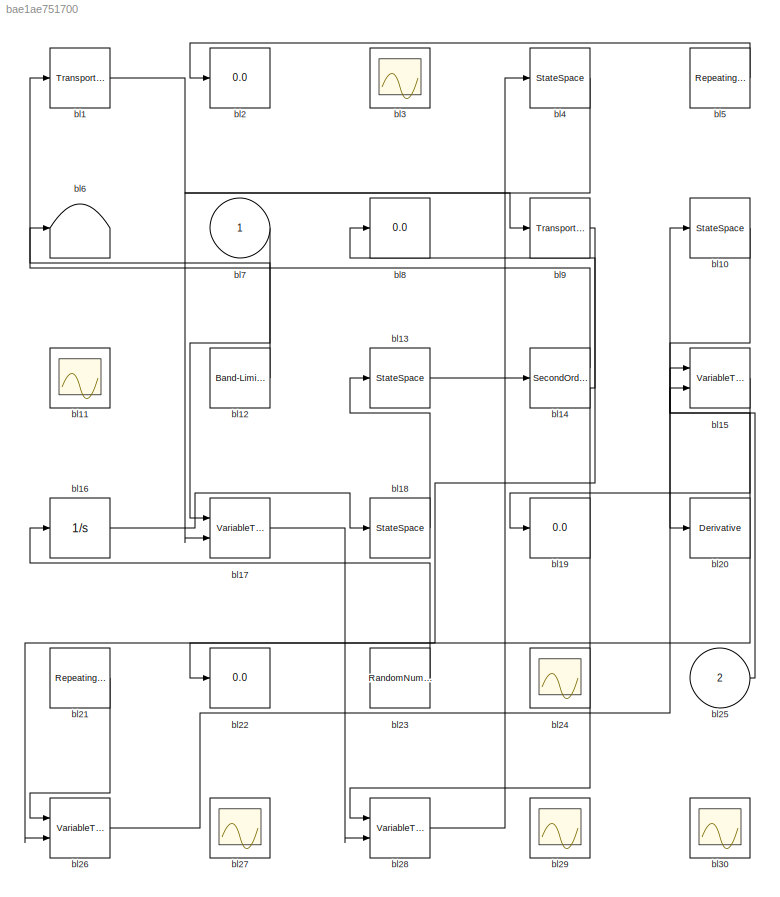
MODEL slx_bae1ae751700
KIND model
CONFIG AbsTol = auto
CONFIG FixedStep = auto
CONFIG MaxStep = auto
CONFIG MinStep = auto
CONFIG RelTol = 1e-3
CONFIG SampleTimeConstraint = Unconstrained
CONFIG Solver = ode45
CONFIG SolverMode = Auto
CONFIG SolverName = ode45
CONFIG StartTime = 0.0
CONFIG StopTime = 10.0
BLOCK [TransportDelay] bl1
  InitialOutput = 1
  Ports = [1, 1]
BLOCK [StateSpace] bl10
  Ports = [1, 1]
  X0 = 0
BLOCK [Scope] bl11
  Floating = on
  NumInputPorts = 1
  Ports = []
BLOCK [Reference] bl12  REF=simulink/Sources/Band-Limited
White Noise
  Cov = [0.1]
  Ports = [0, 1]
  SourceBlock = simulink/Sources/Band-Limited\nWhite Noise
  SourceType = Band-Limited White Noise.
  Ts = 0.1
  VectorParams1D = on
  seed = [23341]
BLOCK [StateSpace] bl13
  Ports = [1, 1]
  X0 = 0
BLOCK [SecondOrderIntegrator] bl14
  LimitDXDT = on
  LimitX = on
  LowerLimitX = 0
  Ports = [1, 2]
  UpperLimitX = 1
BLOCK [VariableTransportDelay] bl15
  InitialOutput = 1
  MaximumDelay = 10
  Ports = [2, 1]
  ZeroDelay = on
BLOCK [Integrator] bl16
  Ports = [1, 1]
BLOCK [VariableTransportDelay] bl17
  InitialOutput = 3
  MaximumDelay = 10
  Ports = [2, 1]
  ZeroDelay = on
BLOCK [StateSpace] bl18
  Ports = [1, 1]
  X0 = 0
BLOCK [Display] bl19
  Decimation = 1
  Ports = [1]
BLOCK [Display] bl2
  Decimation = 1
  Ports = [1]
BLOCK [Derivative] bl20
BLOCK [Reference] bl21  REF=simulink/Sources/Repeating
Sequence
  Ports = [0, 1]
  SourceBlock = simulink/Sources/Repeating\nSequence
  SourceType = Repeating table
  rep_seq_t = [0 2]
  rep_seq_y = [0 2]
BLOCK [Display] bl22
  Decimation = 1
  Ports = [1]
BLOCK [RandomNumber] bl23
  SampleTime = 0.1
BLOCK [Scope] bl24
  Floating = on
  NumInputPorts = 1
  Ports = []
BLOCK [Inport] bl25
  IconDisplay = Port number
  Port = 2
BLOCK [VariableTransportDelay] bl26
  InitialOutput = 3
  MaximumDelay = 10
  Ports = [2, 1]
  ZeroDelay = on
BLOCK [Scope] bl27
  Floating = on
  NumInputPorts = 1
  Ports = []
BLOCK [VariableTransportDelay] bl28
  InitialOutput = 1
  MaximumDelay = 10
  Ports = [2, 1]
  ZeroDelay = on
BLOCK [Scope] bl29
  Floating = on
  NumInputPorts = 1
  Ports = []
BLOCK [Scope] bl3
  Floating = on
  NumInputPorts = 1
  Ports = []
BLOCK [Scope] bl30
  Floating = on
  NumInputPorts = 1
  Ports = []
BLOCK [StateSpace] bl4
  Ports = [1, 1]
  X0 = 0
BLOCK [Reference] bl5  REF=simulink/Sources/Repeating
Sequence
  Ports = [0, 1]
  SourceBlock = simulink/Sources/Repeating\nSequence
  SourceType = Repeating table
  rep_seq_t = [0 2]
  rep_seq_y = [0 2]
BLOCK [Terminator] bl6
BLOCK [Inport] bl7
  IconDisplay = Port number
BLOCK [Display] bl8
  Decimation = 1
  Ports = [1]
BLOCK [TransportDelay] bl9
  InitialOutput = 1
  Ports = [1, 1]
LINE bl10:1 -> bl20:1
LINE bl12:1 -> bl6:1
LINE bl13:1 -> bl14:1
LINE bl14:1 -> bl1:1
NET bl14:2 -> bl28:1, bl8:1
LINE bl15:1 -> bl19:1
LINE bl16:1 -> bl18:1
LINE bl17:1 -> bl28:2
LINE bl18:1 -> bl13:1
LINE bl1:1 -> bl9:1
NET bl20:1 -> bl15:1, bl26:2
LINE bl21:1 -> bl26:1
LINE bl23:1 -> bl16:1
LINE bl25:1 -> bl15:2
LINE bl26:1 -> bl10:1
LINE bl28:1 -> bl4:1
LINE bl4:1 -> bl17:2
LINE bl5:1 -> bl2:1
LINE bl7:1 -> bl17:1
LINE bl9:1 -> bl22:1
note: NET lines group one-source signal fan-out (src -> all destinations, sorted); 1:1 wires keep LINE
